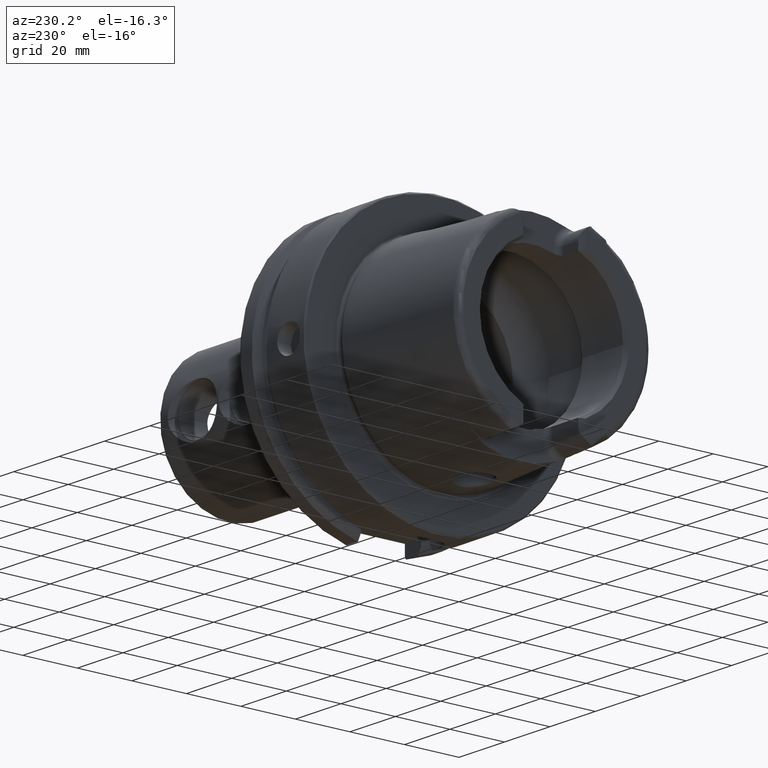
[diagram: clean part render]
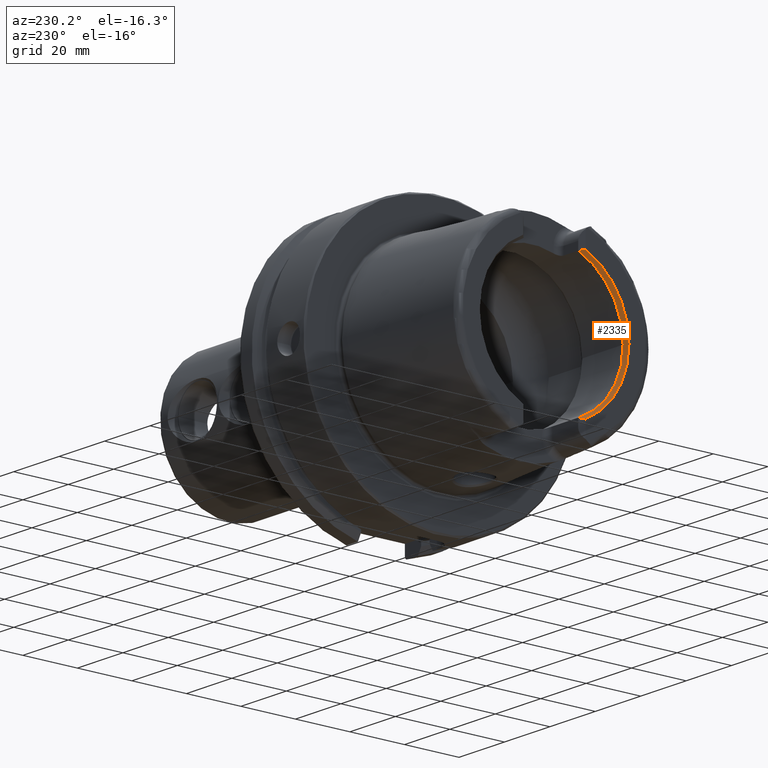
[diagram: same view with one face highlighted and labeled with its STEP entity id]
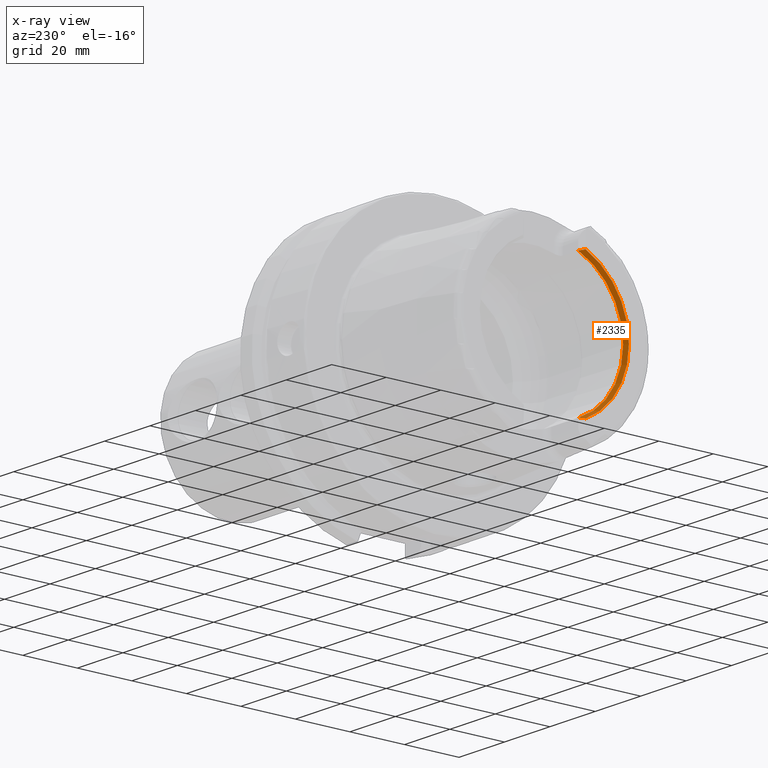
[diagram: x-ray of the same camera — body ghosted, the highlighted face saturated]
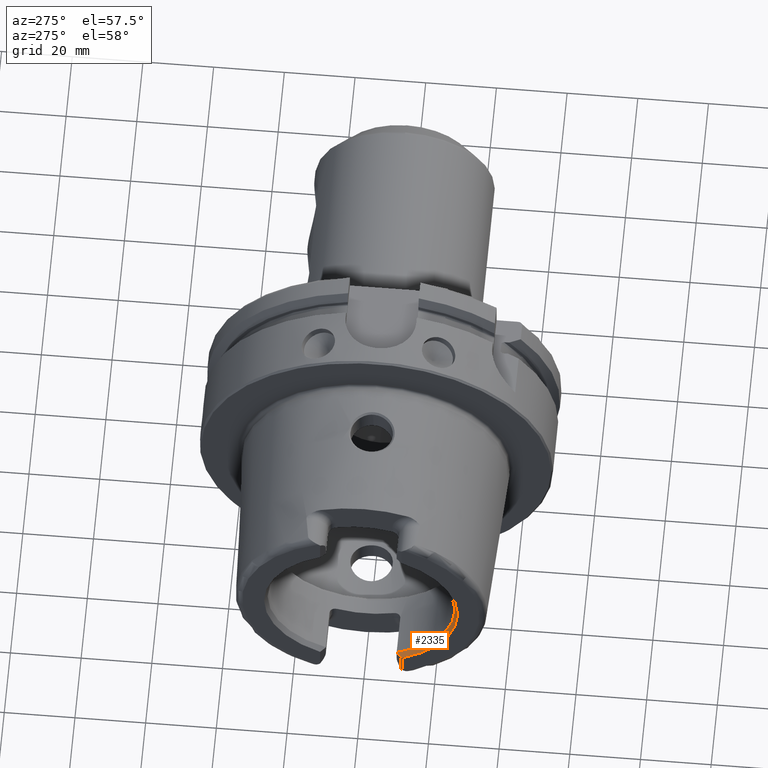
[diagram: same view with one face highlighted and labeled with its STEP entity id]
A machine part, auxiliary view. The second image highlights one B-rep face of the part: STEP entity #2335.
The next image is the same camera in x-ray: the body ghosted, the highlighted face saturated — about 0% of this face is hidden behind the body in this view.
A second angle (auxiliary view) of the same face is appended — the face is thin or edge-on in the first view.
In plain terms, the highlighted conical surface has half-angle 30 deg.
Its self-contained STEP definition (entity closure, byte-faithful):
#66=CONICAL_SURFACE('',#2534,26.9330127018922,0.523598775598298);
#140=CIRCLE('',#2535,27.3660254037844);
#141=CIRCLE('',#2537,26.5);
#142=CIRCLE('',#2538,26.5);
#325=FACE_OUTER_BOUND('',#476,.T.);
#476=EDGE_LOOP('',(#1706,#1707,#1708,#1709,#1710));
#910=ELLIPSE('',#2533,43.9552929417008,25.3776002121998);
#911=ELLIPSE('',#2536,43.9552929417008,25.3776002121998);
#988=VERTEX_POINT('',#4081);
#989=VERTEX_POINT('',#4083);
#990=VERTEX_POINT('',#4087);
#991=VERTEX_POINT('',#4089);
#992=VERTEX_POINT('',#4091);
#1257=EDGE_CURVE('',#988,#989,#910,.T.);
#1259=EDGE_CURVE('',#988,#990,#140,.T.);
#1260=EDGE_CURVE('',#991,#990,#911,.T.);
#1261=EDGE_CURVE('',#991,#992,#141,.T.);
#1262=EDGE_CURVE('',#992,#989,#142,.T.);
#1706=ORIENTED_EDGE('',*,*,#1257,.F.);
#1707=ORIENTED_EDGE('',*,*,#1259,.T.);
#1708=ORIENTED_EDGE('',*,*,#1260,.F.);
#1709=ORIENTED_EDGE('',*,*,#1261,.T.);
#1710=ORIENTED_EDGE('',*,*,#1262,.T.);
#2335=ADVANCED_FACE('',(#325),#66,.F.);
#2533=AXIS2_PLACEMENT_3D('',#4084,#2927,#2928);
#2534=AXIS2_PLACEMENT_3D('',#4086,#2930,#2931);
#2535=AXIS2_PLACEMENT_3D('',#4088,#2932,#2933);
#2536=AXIS2_PLACEMENT_3D('',#4090,#2934,#2935);
#2537=AXIS2_PLACEMENT_3D('',#4092,#2936,#2937);
#2538=AXIS2_PLACEMENT_3D('',#4093,#2938,#2939);
#2927=DIRECTION('center_axis',(0.707106781186546,-0.707106781186549,0.));
#2928=DIRECTION('ref_axis',(0.707106781186549,0.707106781186546,0.));
#2930=DIRECTION('center_axis',(-1.,0.,0.));
#2931=DIRECTION('ref_axis',(0.,-1.,0.));
#2932=DIRECTION('center_axis',(-1.,0.,0.));
#2933=DIRECTION('ref_axis',(0.,-1.,0.));
#2934=DIRECTION('center_axis',(0.707106781186546,-0.707106781186549,0.));
#2935=DIRECTION('ref_axis',(0.707106781186549,0.707106781186546,0.));
#2936=DIRECTION('center_axis',(1.,0.,0.));
#2937=DIRECTION('ref_axis',(0.,-1.,0.));
#2938=DIRECTION('center_axis',(1.,0.,0.));
#2939=DIRECTION('ref_axis',(0.,-1.,0.));
#4081=CARTESIAN_POINT('',(-50.,-11.51,-24.8277918148307));
#4083=CARTESIAN_POINT('',(-48.5,-10.01,-24.5367051577835));
#4084=CARTESIAN_POINT('Origin',(-56.4346732002877,-17.9446732002876,0.));
#4086=CARTESIAN_POINT('Origin',(-49.25,0.,0.));
#4087=CARTESIAN_POINT('',(-50.,-11.51,24.8277918148307));
#4088=CARTESIAN_POINT('Origin',(-50.,0.,0.));
#4089=CARTESIAN_POINT('',(-48.5,-10.01,24.5367051577835));
#4090=CARTESIAN_POINT('Origin',(-56.4346732002877,-17.9446732002876,0.));
#4091=CARTESIAN_POINT('',(-48.5,-26.5,3.24531401774049E-15));
#4092=CARTESIAN_POINT('Origin',(-48.5,0.,0.));
#4093=CARTESIAN_POINT('Origin',(-48.5,0.,0.));